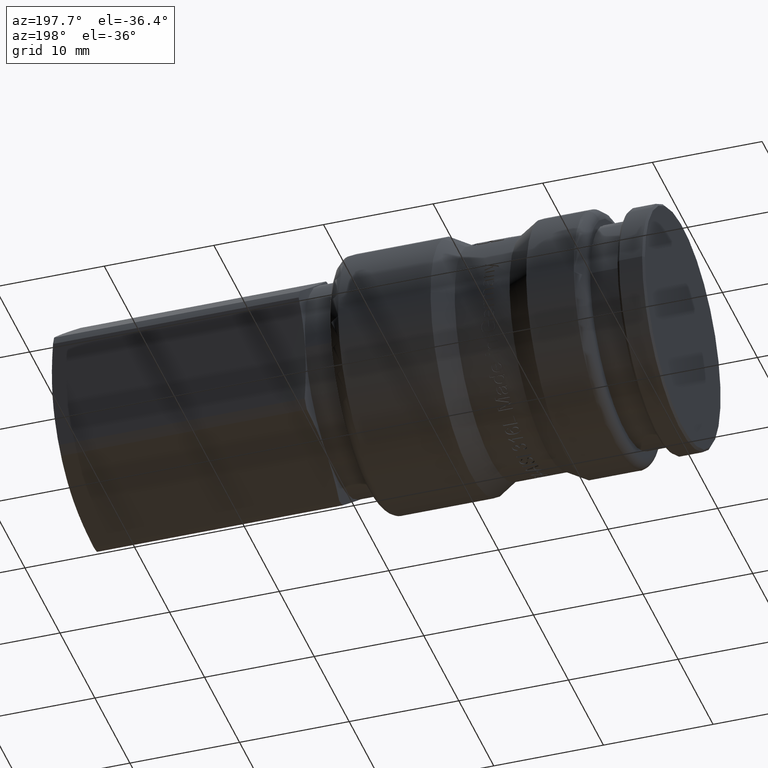
[diagram: clean part render]
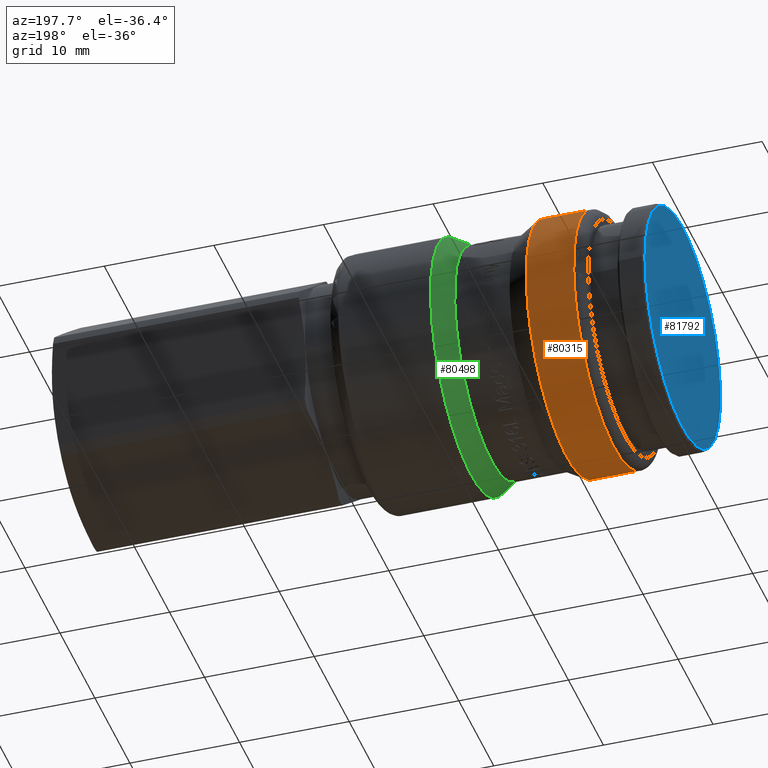
[diagram: same view with three faces highlighted in distinct colors, each labeled with its STEP entity id]
A machine part, auxiliary view with three faces highlighted in distinct colors.
Their STEP definitions:

[orange] entity #80315 — the highlighted cylindrical surface (bore or boss wall) has radius 11.575 mm, axis along (1, 0, 0).
#80284=CARTESIAN_POINT('',(6.249999999999999,8.209837854916231,8.159607061371554));
#80285=VERTEX_POINT('',#80284);
#80286=CARTESIAN_POINT('',(6.249999999999999,0.0,0.0));
#80287=DIRECTION('',(-1.0,0.0,0.0));
#80288=DIRECTION('',(0.0,-0.709273248804858,-0.704933655410069));
#80289=AXIS2_PLACEMENT_3D('',#80286,#80287,#80288);
#80290=CIRCLE('',#80289,11.575000000000003);
#80291=EDGE_CURVE('',#80285,#80285,#80290,.T.);
#80296=CARTESIAN_POINT('',(7.919022690931725,0.0,0.0));
#80297=DIRECTION('',(1.0,0.0,0.0));
#80298=DIRECTION('',(0.0,0.709273248804858,0.704933655410070));
#80299=AXIS2_PLACEMENT_3D('',#80296,#80297,#80298);
#80300=CYLINDRICAL_SURFACE('',#80299,11.575000000000001);
#80301=CARTESIAN_POINT('',(10.588045381863452,8.209837854916227,8.159607061371556));
#80302=VERTEX_POINT('',#80301);
#80303=CARTESIAN_POINT('',(10.588045381863452,0.0,0.0));
#80304=DIRECTION('',(1.0,0.0,0.0));
#80305=DIRECTION('',(0.0,0.709273248804858,0.704933655410070));
#80306=AXIS2_PLACEMENT_3D('',#80303,#80304,#80305);
#80307=CIRCLE('',#80306,11.575000000000001);
#80308=EDGE_CURVE('',#80302,#80302,#80307,.T.);
#80309=ORIENTED_EDGE('',*,*,#80308,.F.);
#80310=EDGE_LOOP('',(#80309));
#80311=FACE_OUTER_BOUND('',#80310,.T.);
#80312=ORIENTED_EDGE('',*,*,#80291,.F.);
#80313=EDGE_LOOP('',(#80312));
#80314=FACE_BOUND('',#80313,.T.);
#80315=ADVANCED_FACE('',(#80311,#80314),#80300,.T.);

[blue] entity #81792 — the highlighted planar face has unit normal (-1, 0, 0).
#81709=CARTESIAN_POINT('',(0.0,10.800000000000001,1.322619E-015));
#81710=VERTEX_POINT('',#81709);
#81711=CARTESIAN_POINT('',(0.0,0.0,0.0));
#81712=DIRECTION('',(1.0,0.0,0.0));
#81713=DIRECTION('',(0.0,-1.0,0.0));
#81714=AXIS2_PLACEMENT_3D('',#81711,#81712,#81713);
#81715=CIRCLE('',#81714,10.800000000000001);
#81716=EDGE_CURVE('',#81710,#81710,#81715,.T.);
#81784=CARTESIAN_POINT('',(0.0,8.525000000000000,0.0));
#81785=DIRECTION('',(-1.0,0.0,0.0));
#81786=DIRECTION('',(0.0,0.0,1.0));
#81787=AXIS2_PLACEMENT_3D('',#81784,#81785,#81786);
#81788=PLANE('',#81787);
#81789=ORIENTED_EDGE('',*,*,#81716,.F.);
#81790=EDGE_LOOP('',(#81789));
#81791=FACE_OUTER_BOUND('',#81790,.T.);
#81792=ADVANCED_FACE('',(#81791),#81788,.T.);

[green] entity #80498 — the highlighted conical surface has half-angle 30 deg.
#79585=CARTESIAN_POINT('',(17.449999999999999,7.447369112451004,7.401803381805730));
#79586=VERTEX_POINT('',#79585);
#79587=CARTESIAN_POINT('',(17.449999999999999,0.0,0.0));
#79588=DIRECTION('',(1.0,0.0,0.0));
#79589=DIRECTION('',(0.0,0.709273248804858,0.704933655410070));
#79590=AXIS2_PLACEMENT_3D('',#79587,#79588,#79589);
#79591=CIRCLE('',#79590,10.500000000000000);
#79592=EDGE_CURVE('',#79586,#79586,#79591,.T.);
#80369=CARTESIAN_POINT('',(19.311954618136543,8.209837854916225,8.159607061371556));
#80370=VERTEX_POINT('',#80369);
#80371=CARTESIAN_POINT('',(19.311954618136543,0.0,0.0));
#80372=DIRECTION('',(1.000000000000000,0.0,0.0));
#80373=DIRECTION('',(0.0,0.709273248804858,0.704933655410070));
#80374=AXIS2_PLACEMENT_3D('',#80371,#80372,#80373);
#80375=CIRCLE('',#80374,11.574999999999999);
#80376=EDGE_CURVE('',#80370,#80370,#80375,.T.);
#80487=CARTESIAN_POINT('',(18.380977309068271,0.0,0.0));
#80488=DIRECTION('',(1.0,0.0,0.0));
#80489=DIRECTION('',(0.0,0.709273248804858,0.704933655410070));
#80490=AXIS2_PLACEMENT_3D('',#80487,#80488,#80489);
#80491=CONICAL_SURFACE('',#80490,11.037500000000000,29.999999999999957);
#80492=ORIENTED_EDGE('',*,*,#80376,.F.);
#80493=EDGE_LOOP('',(#80492));
#80494=FACE_OUTER_BOUND('',#80493,.T.);
#80495=ORIENTED_EDGE('',*,*,#79592,.T.);
#80496=EDGE_LOOP('',(#80495));
#80497=FACE_BOUND('',#80496,.T.);
#80498=ADVANCED_FACE('',(#80494,#80497),#80491,.T.);